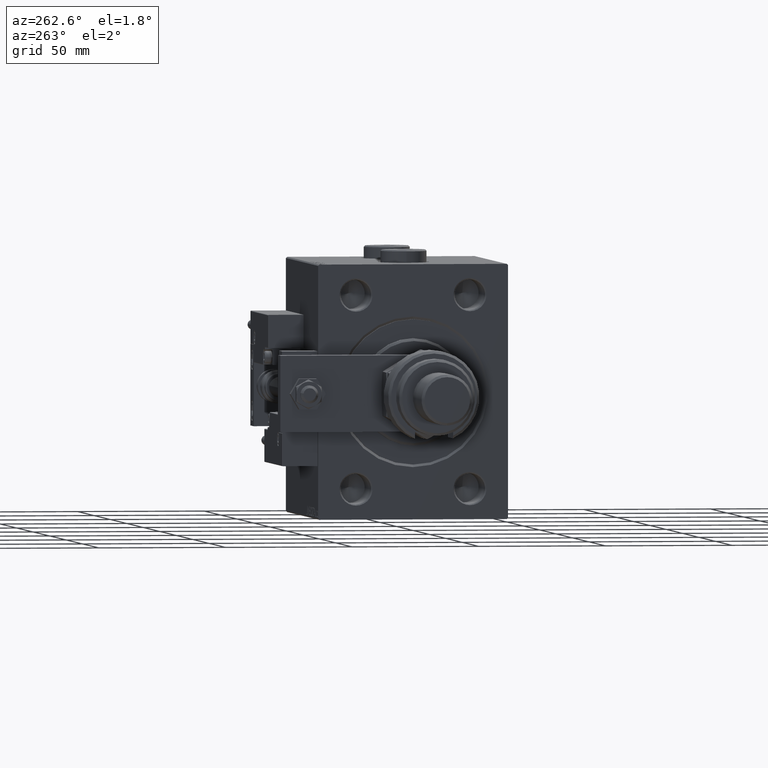
[diagram: clean part render]
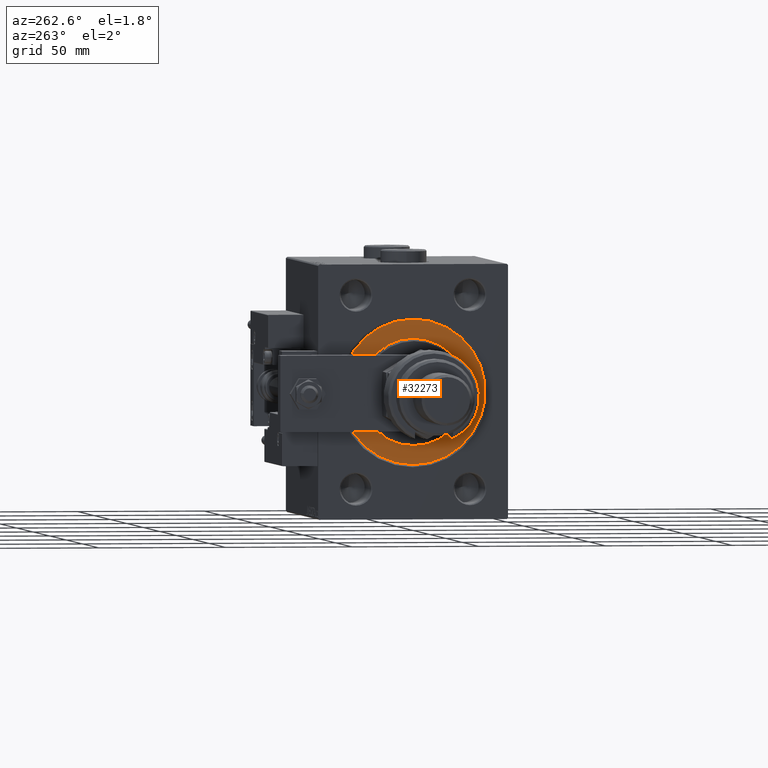
[diagram: same view with one face highlighted and labeled with its STEP entity id]
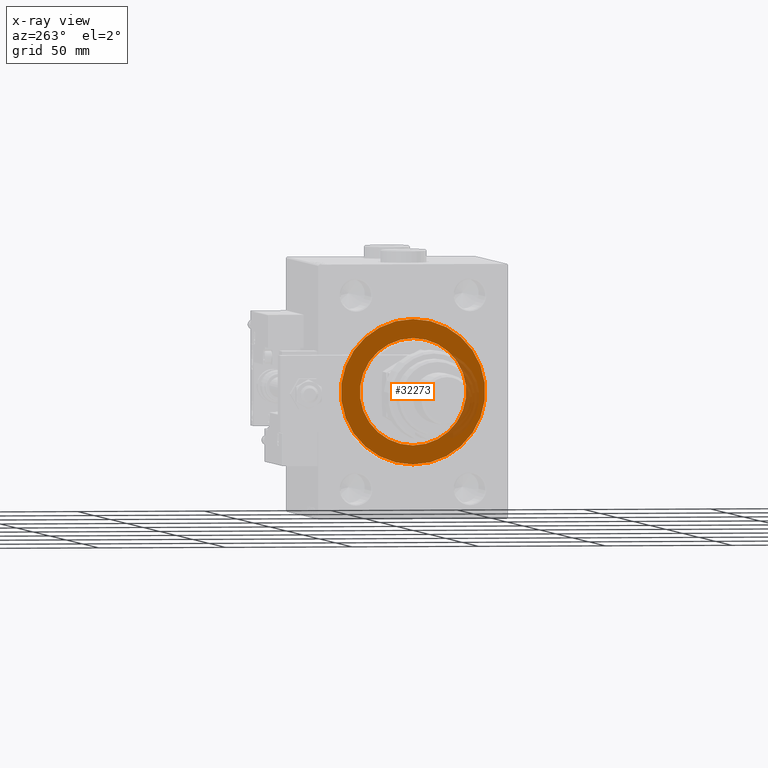
[diagram: x-ray of the same camera — body ghosted, the highlighted face saturated]
A machine part, auxiliary view. The second image highlights one B-rep face of the part: STEP entity #32273.
The next image is the same camera in x-ray: the body ghosted, the highlighted face saturated — about 13% of this face is hidden behind the body in this view.
In plain terms, the highlighted planar face has unit normal (1, -0, -0).
Its self-contained STEP definition (entity closure, byte-faithful):
#1668 = DIRECTION ( 'NONE',  ( -1.000000000000000000, 0.000000000000000000, 0.000000000000000000 ) ) ;
#2298 = DIRECTION ( 'NONE',  ( 1.000000000000000000, -0.000000000000000000, 0.000000000000000000 ) ) ;
#2550 = CARTESIAN_POINT ( 'NONE',  ( 0.000000000000000000, 0.000000000000000000, 0.000000000000000000 ) ) ;
#3405 = CIRCLE ( 'NONE', #31172, 21.00000000000000000 ) ;
#4910 = ORIENTED_EDGE ( 'NONE', *, *, #45016, .F. ) ;
#6701 = EDGE_LOOP ( 'NONE', ( #43072, #4910 ) ) ;
#7686 = FACE_OUTER_BOUND ( 'NONE', #30562, .T. ) ;
#7970 = PLANE ( 'NONE',  #51386 ) ;
#9293 = EDGE_CURVE ( 'NONE', #51900, #35734, #25434, .T. ) ;
#11911 = DIRECTION ( 'NONE',  ( -1.000000000000000000, 0.000000000000000000, 0.000000000000000000 ) ) ;
#13119 = CARTESIAN_POINT ( 'NONE',  ( 0.000000000000000000, 0.000000000000000000, 0.000000000000000000 ) ) ;
#14992 = AXIS2_PLACEMENT_3D ( 'NONE', #40138, #1668, #26657 ) ;
#16316 = DIRECTION ( 'NONE',  ( 0.000000000000000000, 0.000000000000000000, -1.000000000000000000 ) ) ;
#17312 = DIRECTION ( 'NONE',  ( 0.000000000000000000, 0.000000000000000000, 1.000000000000000000 ) ) ;
#19602 = CARTESIAN_POINT ( 'NONE',  ( 0.000000000000000000, 3.490243377569956456E-15, 28.50000000000000000 ) ) ;
#20864 = FACE_BOUND ( 'NONE', #6701, .T. ) ;
#24884 = AXIS2_PLACEMENT_3D ( 'NONE', #2550, #37094, #16316 ) ;
#25434 = CIRCLE ( 'NONE', #38902, 28.50000000000000000 ) ;
#26657 = DIRECTION ( 'NONE',  ( 0.000000000000000000, 0.000000000000000000, 1.000000000000000000 ) ) ;
#29012 = CARTESIAN_POINT ( 'NONE',  ( 0.000000000000000000, 0.000000000000000000, 0.000000000000000000 ) ) ;
#30562 = EDGE_LOOP ( 'NONE', ( #43272, #53471 ) ) ;
#31172 = AXIS2_PLACEMENT_3D ( 'NONE', #53129, #2298, #44709 ) ;
#31324 = DIRECTION ( 'NONE',  ( -1.000000000000000000, 0.000000000000000000, 0.000000000000000000 ) ) ;
#32273 = ADVANCED_FACE ( 'NONE', ( #20864, #7686 ), #7970, .F. ) ;
#33116 = CARTESIAN_POINT ( 'NONE',  ( 0.000000000000000000, 0.000000000000000000, 21.00000000000000000 ) ) ;
#35734 = VERTEX_POINT ( 'NONE', #19602 ) ;
#36901 = DIRECTION ( 'NONE',  ( 0.000000000000000000, 0.000000000000000000, 1.000000000000000000 ) ) ;
#37094 = DIRECTION ( 'NONE',  ( 1.000000000000000000, -0.000000000000000000, 0.000000000000000000 ) ) ;
#38902 = AXIS2_PLACEMENT_3D ( 'NONE', #13119, #31324, #17312 ) ;
#40138 = CARTESIAN_POINT ( 'NONE',  ( 0.000000000000000000, 0.000000000000000000, 0.000000000000000000 ) ) ;
#41004 = CIRCLE ( 'NONE', #24884, 21.00000000000000000 ) ;
#43072 = ORIENTED_EDGE ( 'NONE', *, *, #45640, .F. ) ;
#43272 = ORIENTED_EDGE ( 'NONE', *, *, #9293, .F. ) ;
#43668 = CIRCLE ( 'NONE', #14992, 28.50000000000000000 ) ;
#43759 = VERTEX_POINT ( 'NONE', #43763 ) ;
#43763 = CARTESIAN_POINT ( 'NONE',  ( 0.000000000000000000, 2.571758278209441661E-15, -21.00000000000000000 ) ) ;
#44709 = DIRECTION ( 'NONE',  ( 0.000000000000000000, 0.000000000000000000, -1.000000000000000000 ) ) ;
#45016 = EDGE_CURVE ( 'NONE', #43759, #46125, #41004, .T. ) ;
#45640 = EDGE_CURVE ( 'NONE', #46125, #43759, #3405, .T. ) ;
#46125 = VERTEX_POINT ( 'NONE', #33116 ) ;
#51386 = AXIS2_PLACEMENT_3D ( 'NONE', #29012, #11911, #36901 ) ;
#51900 = VERTEX_POINT ( 'NONE', #55170 ) ;
#53129 = CARTESIAN_POINT ( 'NONE',  ( 0.000000000000000000, 0.000000000000000000, 0.000000000000000000 ) ) ;
#53471 = ORIENTED_EDGE ( 'NONE', *, *, #54379, .F. ) ;
#54379 = EDGE_CURVE ( 'NONE', #35734, #51900, #43668, .T. ) ;
#55170 = CARTESIAN_POINT ( 'NONE',  ( 0.000000000000000000, 0.000000000000000000, -28.50000000000000000 ) ) ;